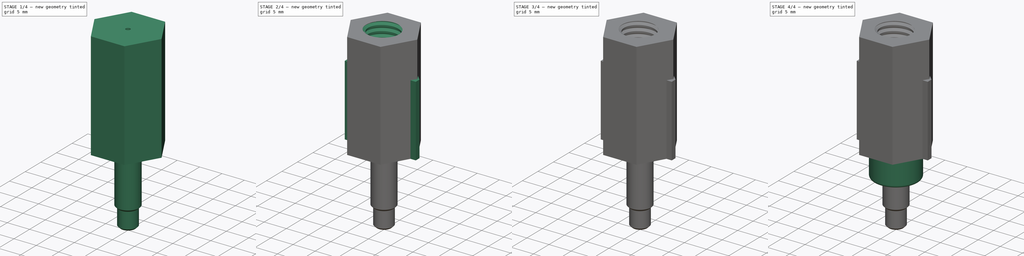
[diagram: build sequence overview — one tinted view per stage of 4, left to right]
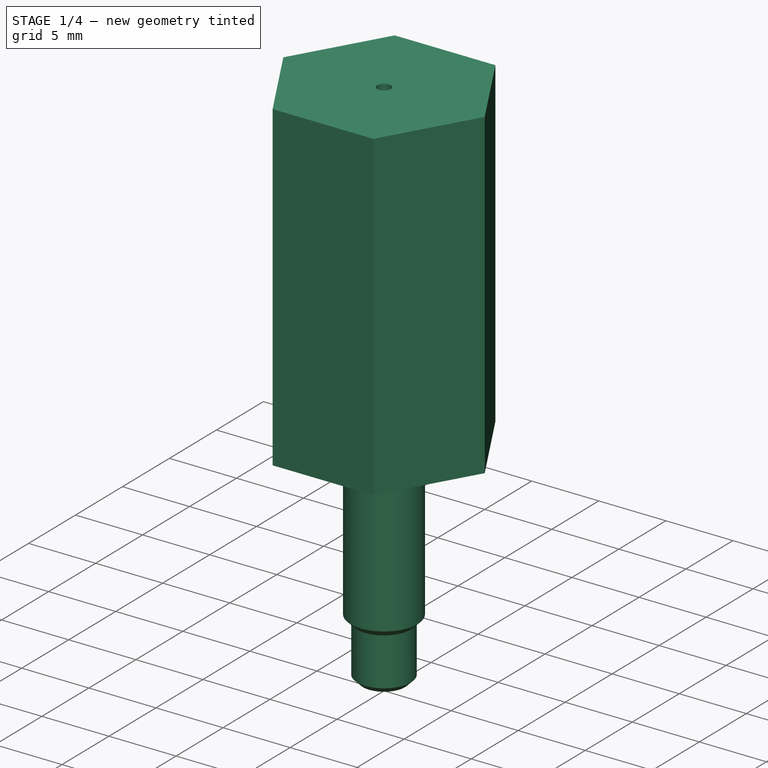
[diagram: stage 1 of 4 — iso view after this stage's code; geometry added in this stage tinted green]
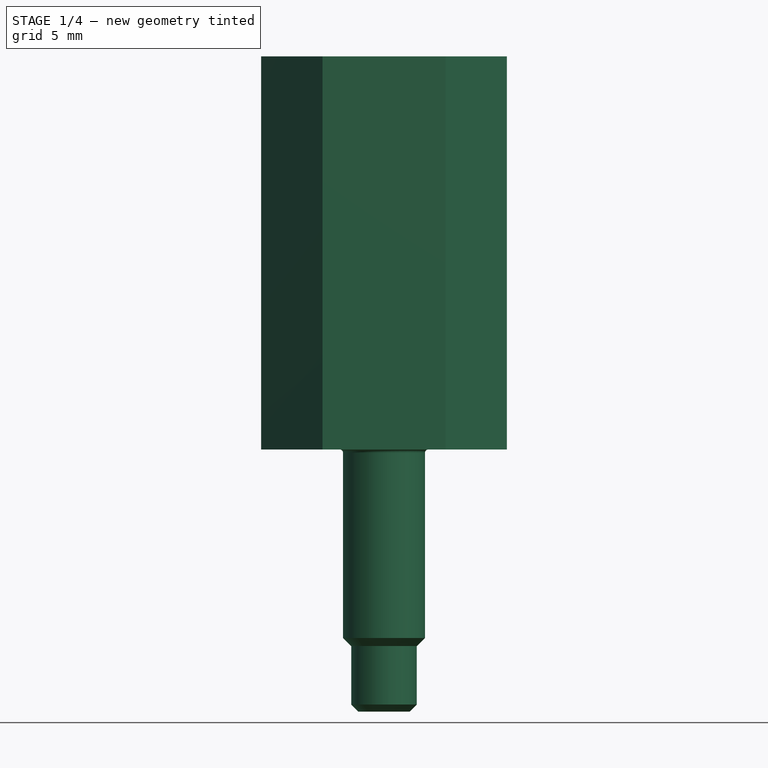
[diagram: stage 1 of 4 — front view after this stage's code; geometry added in this stage tinted green]
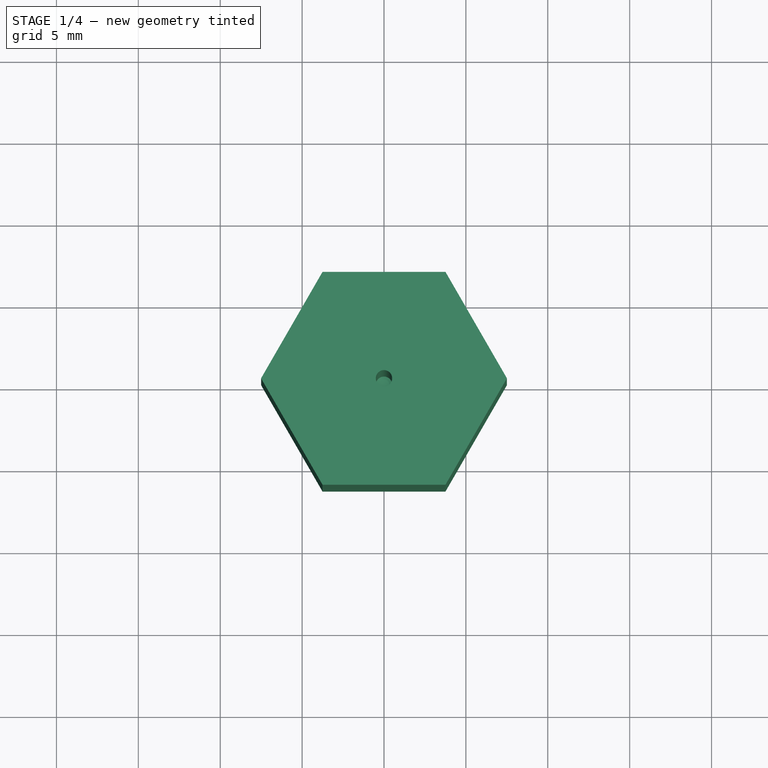
[diagram: stage 1 of 4 — top view after this stage's code; geometry added in this stage tinted green]
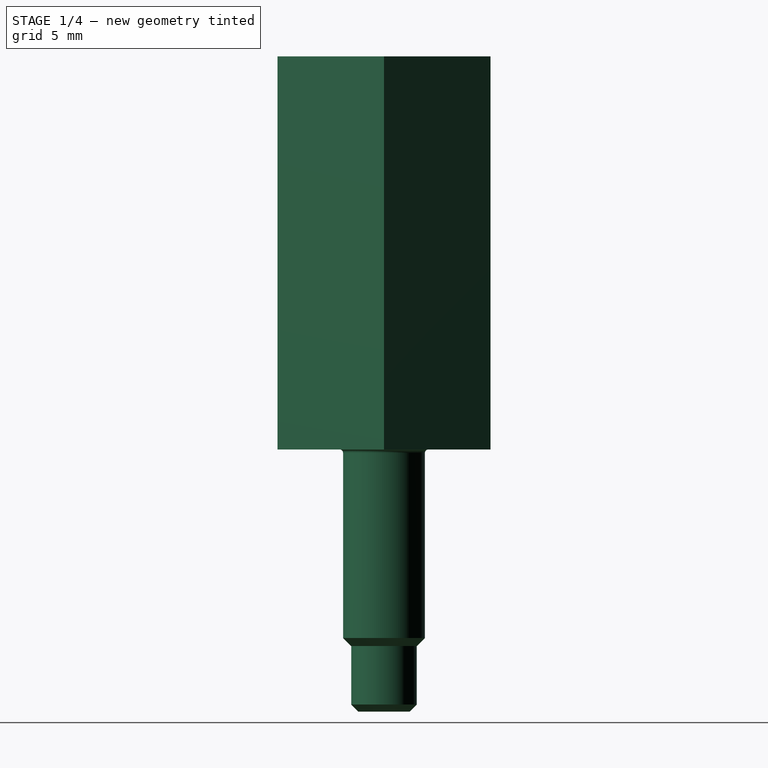
[diagram: stage 1 of 4 — right view after this stage's code; geometry added in this stage tinted green]
FCSTD DOCUMENT  (FreeCAD 0.20R30972 (Git))
Label: Крепеж
License: All rights reserved
LicenseURL: http://en.wikipedia.org/wiki/All_rights_reserved
objects: Part::FeaturePython×14, App::FeaturePython×9, Sketcher::SketchObject×7, PartDesign::Pad×4, PartDesign::Hole×4, PartDesign::Body×4, App::Link×1
note: 46 computed .brp shape members not serialized (recipe doc carries the construction recipe); baked Part::Feature solids carry a one-line shape summary decoded from their .brp
EXTERNAL_REF file=ТаблицаПараметров.FCStd obj=Spreadsheet002

FEATURE [PartDesign::Body] Body001  label="M5T_nut"
  AutoGroupSolids = false
  ClaimAllChildren = false
  ExportMode = 0
  Group = -> [Sketch002,Pad001,Sketch003,Hole001]
  Origin = -> Origin001
  Tip = -> Hole001
  TreeRank = 780
  _ExportChildren = -> [Pad001,Hole001]
  _GroupVersion = 1
FEATURE [Sketcher::SketchObject] Sketch006
  FullyConstrained = true
  MapMode = 2
  Support = -> [XY_Plane003]
  TreeRank = 11
  expr: Constraints[20] = <<ТаблицаПараметров>>#<<Ролик>>.din6334_D1
  sketch-geometry (8):
    g0: LineSegment StartX=3.75278 StartY=6.5 StartZ=0 EndX=-3.75278 EndY=6.5 EndZ=0
    g1: LineSegment StartX=-3.75278 StartY=6.5 StartZ=0 EndX=-7.50555 EndY=2.04e-14 EndZ=0
    g2: LineSegment StartX=-7.50555 StartY=2.04e-14 StartZ=0 EndX=-3.75278 EndY=-6.5 EndZ=0
    g3: LineSegment StartX=-3.75278 StartY=-6.5 StartZ=0 EndX=3.75278 EndY=-6.5 EndZ=0
    g4: LineSegment StartX=3.75278 StartY=-6.5 StartZ=0 EndX=7.50555 EndY=1.78e-14 EndZ=0
    g5: LineSegment StartX=7.50555 StartY=1.8e-14 StartZ=0 EndX=3.75278 EndY=6.5 EndZ=0
    g6: Circle [constr] CenterX=0 CenterY=0 CenterZ=0 NormalX=0 NormalY=0 NormalZ=1 AngleXU=0 Radius=7.50555
    g7: Circle CenterX=0 CenterY=0 CenterZ=0 NormalX=0 NormalY=0 NormalZ=1 AngleXU=0 Radius=0.5
  constraints (18):
    c: Coincident(g0,g1)
    c: Coincident(g1,g2)
    c: Coincident(g2,g3)
    c: Coincident(g3,g4)
    c: Coincident(g4,g5)
    c: Coincident(g5,g0)
    c: Equal(g0, g1-g5) x5
    c: PointOnObject(g0,g6)
    c: PointOnObject(g1,g6)
    c: PointOnObject(g2,g6)
    c: PointOnObject(g3,g6)
    c: PointOnObject(g4,g6)
    c: PointOnObject(g5,g6)
    c: Horizontal(g0)
    c: Coincident(g6,g7)
    c: Coincident(g6,g-1)
    c: DistanceY(g2,g0) = 13
    c: Diameter(g7) = 1
FEATURE [PartDesign::Pad] Pad003
  AddSubType = 0
  AlongSketchNormal = false
  CheckUpToFaceLimits = true
  ClaimChildren = false
  Direction = (0,0,1)
  Fit = 0
  FitJoin = 0
  InnerFit = 0
  InnerFitJoin = 0
  InnerTaperAngle = 0
  InnerTaperAngleRev = 0
  Length = 24
  Length2 = 100
  Linearize = true
  NewSolid = false
  Profile = -> Sketch006
  Suppress = false
  TreeRank = 12
  Type = 0
  _ProfileBasedVersion = 1
  expr: Length = <<ТаблицаПараметров>>#<<Ролик>>.din6334_Len
FEATURE [PartDesign::Body] Body003  label="DIN6334"
  AutoGroupSolids = false
  ClaimAllChildren = false
  ExportMode = 0
  Group = -> [Sketch006,Pad003,Hole003]
  Origin = -> Origin003
  Tip = -> Hole003
  TreeRank = 781
  _ExportChildren = -> [Pad003,Hole003]
  _GroupVersion = 1
FEATURE [Part::FeaturePython] Screw  label="M4x16-Screw"  # Fasteners workbench fastener (typed FeaturePython)
  TreeRank = 782
  diameter = 5
  invert = false
  length = 5
  lengthCustom = 16
  matchOuter = false
  offset = 0
  thread = false
  type = 34
FEATURE [Part::FeaturePython] Screw003  label="M5x12-Screw"  # Fasteners workbench fastener (typed FeaturePython)
  TreeRank = 783
  diameter = 6
  invert = false
  length = 2
  lengthCustom = 12
  matchOuter = false
  offset = 0
  thread = false
  type = 34
FEATURE [App::FeaturePython] Constraints  # WARN: FeaturePython — macro-defined, semantics opaque (R4)
  TreeRank = 785
  _LinkVersion = 1
  _Version = 1
FEATURE [Part::FeaturePython] Parts  # WARN: FeaturePython — macro-defined, semantics opaque (R4)
  Group = -> [Screw003]
  GroupMode = 0
  TreeRank = 787
  _LinkVersion = 1
FEATURE [App::FeaturePython] Constraints006  # WARN: FeaturePython — macro-defined, semantics opaque (R4)
  TreeRank = 791
  _LinkVersion = 1
  _Version = 1
FEATURE [Part::FeaturePython] Parts006  # WARN: FeaturePython — macro-defined, semantics opaque (R4)
  Group = -> [Screw]
  GroupMode = 0
  TreeRank = 793
  _LinkVersion = 1
FEATURE [Part::FeaturePython] Assembly005  label="КрепежМ6Тгайка"  # WARN: FeaturePython — macro-defined, semantics opaque (R4)
  AutoRelax = true
  BuildShape = 0
  Freeze = false
  Group = -> [Constraints005,Elements005,Parts005]
  TreeRank = 778
  Verbose = false
  _LinkVersion = 1
  _SolverType = 1
  _Version = 1
FEATURE [App::FeaturePython] Constraint065  label="Attachment029"  # WARN: FeaturePython — macro-defined, semantics opaque (R4)
  Cascade = false
  Disabled = false
  Group = -> [ElementLink138,ElementLink139]
  Multiply = false
  TreeRank = 773
  _ConstraintType = 45
  _LinkVersion = 1
  _Parent = -> Constraints005
FEATURE [App::FeaturePython] Constraints005  # WARN: FeaturePython — macro-defined, semantics opaque (R4)
  Group = -> [Constraint065]
  TreeRank = 762
  _LinkVersion = 1
  _Version = 1
FEATURE [Part::FeaturePython] Element140  label="Винт"  # link proxy (typed FeaturePython)
  Detach = false
  LinkTransform = true
  LinkedObject = -> Screw002 [Face5]
  TreeRank = 765
  _LinkVersion = 1
  _Parent = -> Elements005
FEATURE [Part::FeaturePython] Element141  label="резьбагайки"  # link proxy (typed FeaturePython)
  Detach = false
  LinkTransform = true
  LinkedObject = -> Link028 [Hole002.Face6]
  TreeRank = 766
  _LinkVersion = 1
  _Parent = -> Elements005
FEATURE [Part::FeaturePython] Element142  label="резьбавинта"  # link proxy (typed FeaturePython)
  Detach = false
  LinkTransform = true
  LinkedObject = -> Screw002 [Face7]
  TreeRank = 767
  _LinkVersion = 1
  _Parent = -> Elements005
FEATURE [App::FeaturePython] ElementLink138  label="резьбавинта"  # link proxy (typed FeaturePython)
  LinkTransform = true
  LinkedObject = -> Element142
  TreeRank = 774
  _LinkVersion = 1
  _Parent = -> Constraint065
FEATURE [App::FeaturePython] ElementLink139  label="резьбагайки"  # link proxy (typed FeaturePython)
  LinkTransform = true
  LinkedObject = -> Element141
  Offset = pos=(0,0,13) rot=(0,0,1;1.5708rad)
  Placement = pos=(-4.4e-15,1.13e-14,-13) rot=(0,0,-1;1.5708rad)
  TreeRank = 775
  _LinkVersion = 1
  _Parent = -> Constraint065
FEATURE [App::FeaturePython] Elements005  # WARN: FeaturePython — macro-defined, semantics opaque (R4)
  Group = -> [Element140,Element141,Element142]
  TreeRank = 763
  _LinkVersion = 1
FEATURE [Part::FeaturePython] Assembly  label="М5х12"  # WARN: FeaturePython — macro-defined, semantics opaque (R4)
  AutoRelax = true
  BuildShape = 0
  Freeze = false
  Group = -> [Constraints,Elements,Parts]
  TreeRank = 784
  Verbose = false
  _LinkVersion = 1
  _SolverType = 1
  _Version = 1
FEATURE [App::FeaturePython] Elements  # WARN: FeaturePython — macro-defined, semantics opaque (R4)
  Group = -> [Element]
  TreeRank = 786
  _LinkVersion = 1
FEATURE [Part::FeaturePython] Element  label="М5_12_посадка"  # link proxy (typed FeaturePython)
  Detach = false
  LinkTransform = true
  LinkedObject = -> Screw003 [Face5]
  TreeRank = 788
  _LinkVersion = 1
  _Parent = -> Elements
FEATURE [Part::FeaturePython] Assembly006  label="М4х16"  # WARN: FeaturePython — macro-defined, semantics opaque (R4)
  AutoRelax = true
  BuildShape = 0
  Freeze = false
  Group = -> [Constraints006,Elements006,Parts006]
  TreeRank = 790
  Verbose = false
  _LinkVersion = 1
  _SolverType = 1
  _Version = 1
FEATURE [App::FeaturePython] Elements006  # WARN: FeaturePython — macro-defined, semantics opaque (R4)
  Group = -> [Element143]
  TreeRank = 792
  _LinkVersion = 1
FEATURE [Part::FeaturePython] Element143  label="М4_16_посадка"  # link proxy (typed FeaturePython)
  Detach = false
  LinkTransform = true
  LinkedObject = -> Screw [Face5]
  TreeRank = 794
  _LinkVersion = 1
  _Parent = -> Elements006
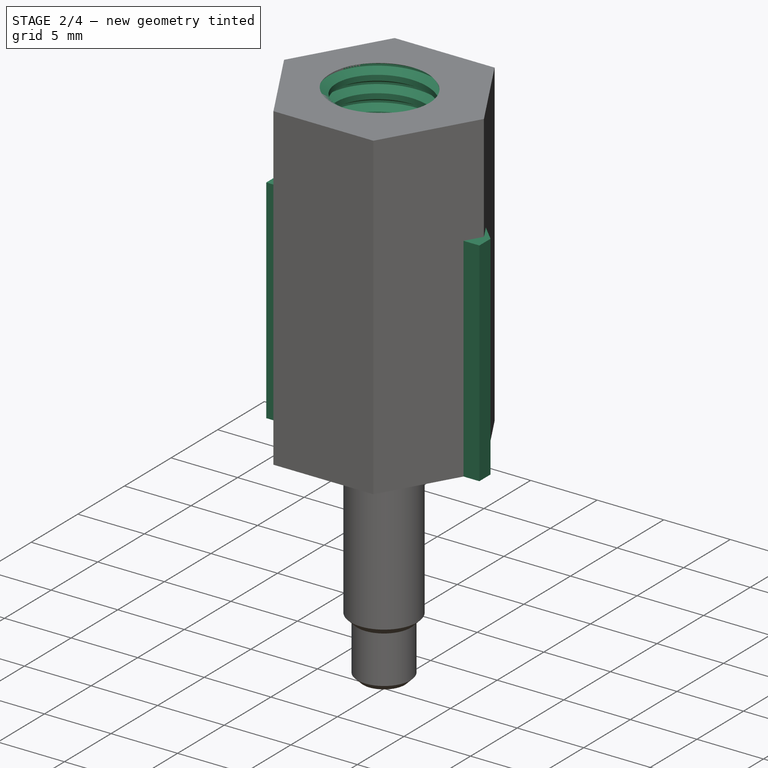
[diagram: stage 2 of 4 — iso view after this stage's code; geometry added in this stage tinted green]
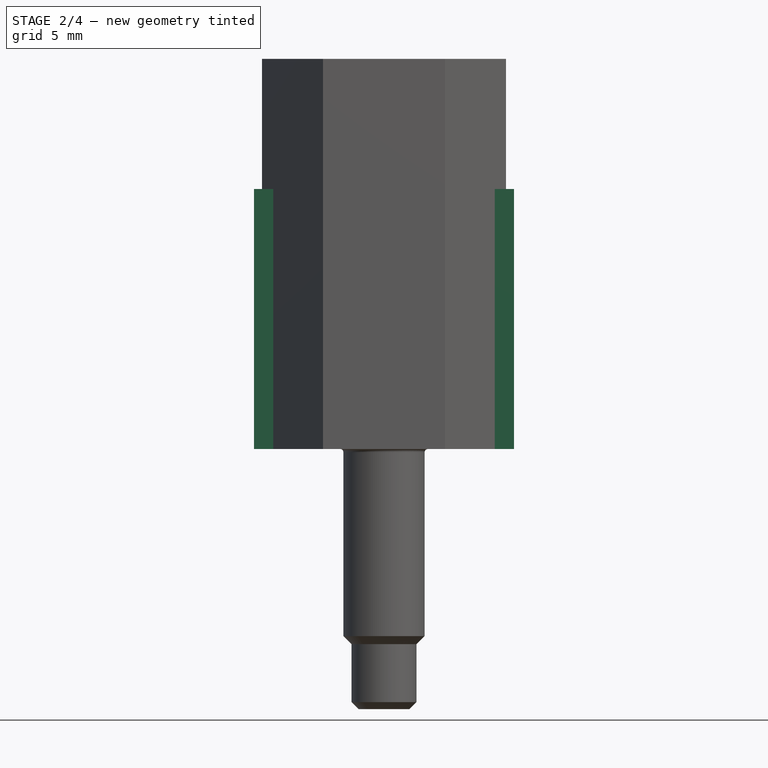
[diagram: stage 2 of 4 — front view after this stage's code; geometry added in this stage tinted green]
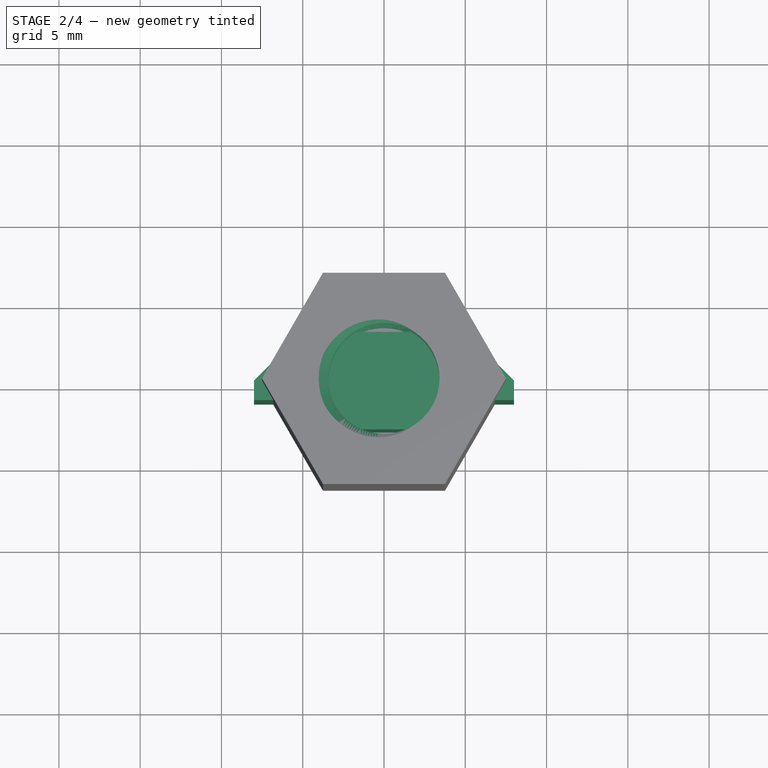
[diagram: stage 2 of 4 — top view after this stage's code; geometry added in this stage tinted green]
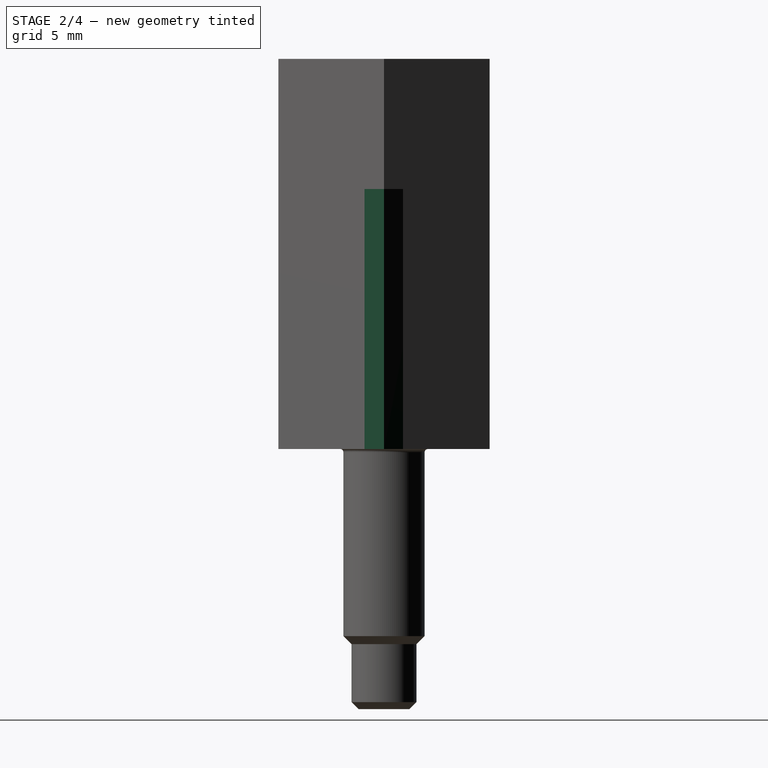
[diagram: stage 2 of 4 — right view after this stage's code; geometry added in this stage tinted green]
FEATURE [Part::FeaturePython] Parts005  # WARN: FeaturePython — macro-defined, semantics opaque (R4)
  Group = -> [Link028,Screw002]
  GroupMode = 0
  TreeRank = 764
  _LinkVersion = 1
FEATURE [Sketcher::SketchObject] Sketch
  FullyConstrained = true
  MapMode = 2
  TreeRank = 11
  sketch-geometry (10):
    g0: LineSegment StartX=-5 StartY=3 StartZ=0 EndX=5 EndY=3 EndZ=0
    g1: LineSegment StartX=5 StartY=3 StartZ=0 EndX=8 EndY=0 EndZ=0
    g2: LineSegment StartX=8 StartY=0 StartZ=0 EndX=8 EndY=-1.2 EndZ=0
    g3: LineSegment StartX=8 StartY=-1.2 StartZ=0 EndX=3.9 EndY=-1.2 EndZ=0
    g4: LineSegment StartX=3.9 StartY=-1.2 StartZ=0 EndX=3.9 EndY=-3 EndZ=0
    g5: LineSegment StartX=3.9 StartY=-3 StartZ=0 EndX=-3.9 EndY=-3 EndZ=0
    g6: LineSegment StartX=-3.9 StartY=-3 StartZ=0 EndX=-3.9 EndY=-1.2 EndZ=0
    g7: LineSegment StartX=-3.9 StartY=-1.2 StartZ=0 EndX=-8 EndY=-1.2 EndZ=0
    g8: LineSegment StartX=-8 StartY=-1.2 StartZ=0 EndX=-8 EndY=0 EndZ=0
    g9: LineSegment StartX=-8 StartY=0 StartZ=0 EndX=-5 EndY=3 EndZ=0
  constraints (28):
    c: PointOnObject(g1,g-1)
    c: Vertical(g2)
    c: Coincident(g3,g2)
    c: Horizontal(g3)
    c: Coincident(g4,g3)
    c: Coincident(g6,g5)
    c: Coincident(g7,g6)
    c: Horizontal(g7)
    c: Coincident(g8,g7)
    c: PointOnObject(g8,g-1)
    c: Vertical(g8)
    c: Coincident(g9,g0)
    c: Coincident(g0,g1)
    c: Coincident(g1,g2)
    c: Coincident(g5,g4)
    c: Vertical(g4)
    c: Vertical(g6)
    c: DistanceX(g0,g0) = 10
    c: Angle(g-1,g9) = 0.785398
    c: Coincident(g9,g8)
    c: Angle(g1,g-1) = 0.785398
    c: Symmetric(g0,g0,g-2)
    c: DistanceX(g5,g5) = 7.8
    c: Symmetric(g5,g4,g-2)
    c: DistanceY(g4,g4) = 1.8
    c: DistanceX(g7,g2) = 16
    c: DistanceY(g6,g6) = 1.8
    c: DistanceY(g5,g0) = 6
FEATURE [PartDesign::Pad] Pad
  AddSubType = 0
  AlongSketchNormal = false
  CheckUpToFaceLimits = true
  ClaimChildren = false
  Direction = (0,0,1)
  Fit = 0
  FitJoin = 0
  InnerFit = 0
  InnerFitJoin = 0
  InnerTaperAngle = 0
  InnerTaperAngleRev = 0
  Length = 16
  Length2 = 100
  Linearize = true
  NewSolid = false
  Profile = -> Sketch
  Suppress = false
  TreeRank = 12
  Type = 0
  _ProfileBasedVersion = 1
FEATURE [PartDesign::Body] Body  label="M4T_nut"
  AutoGroupSolids = false
  ClaimAllChildren = false
  ExportMode = 0
  Group = -> [Sketch,Pad,Sketch001,Hole]
  Origin = -> Origin
  Tip = -> Hole
  TreeRank = 779
  _ExportChildren = -> [Pad,Hole]
  _GroupVersion = 1
FEATURE [Sketcher::SketchObject] Sketch002
  FullyConstrained = true
  MapMode = 2
  TreeRank = 11
  sketch-geometry (10):
    g0: LineSegment StartX=-5 StartY=3 StartZ=0 EndX=5 EndY=3 EndZ=0
    g1: LineSegment StartX=5 StartY=3 StartZ=0 EndX=8 EndY=0 EndZ=0
    g2: LineSegment StartX=8 StartY=0 StartZ=0 EndX=8 EndY=-1.2 EndZ=0
    g3: LineSegment StartX=8 StartY=-1.2 StartZ=0 EndX=3.9 EndY=-1.2 EndZ=0
    g4: LineSegment StartX=3.9 StartY=-1.2 StartZ=0 EndX=3.9 EndY=-3 EndZ=0
    g5: LineSegment StartX=3.9 StartY=-3 StartZ=0 EndX=-3.9 EndY=-3 EndZ=0
    g6: LineSegment StartX=-3.9 StartY=-3 StartZ=0 EndX=-3.9 EndY=-1.2 EndZ=0
    g7: LineSegment StartX=-3.9 StartY=-1.2 StartZ=0 EndX=-8 EndY=-1.2 EndZ=0
    g8: LineSegment StartX=-8 StartY=-1.2 StartZ=0 EndX=-8 EndY=0 EndZ=0
    g9: LineSegment StartX=-8 StartY=0 StartZ=0 EndX=-5 EndY=3 EndZ=0
  constraints (28):
    c: PointOnObject(g1,g-1)
    c: Vertical(g2)
    c: Coincident(g3,g2)
    c: Horizontal(g3)
    c: Coincident(g4,g3)
    c: Coincident(g6,g5)
    c: Coincident(g7,g6)
    c: Horizontal(g7)
    c: Coincident(g8,g7)
    c: PointOnObject(g8,g-1)
    c: Vertical(g8)
    c: Coincident(g9,g0)
    c: Coincident(g0,g1)
    c: Coincident(g1,g2)
    c: Coincident(g5,g4)
    c: Vertical(g4)
    c: Vertical(g6)
    c: DistanceX(g0,g0) = 10
    c: Angle(g-1,g9) = 0.785398
    c: Coincident(g9,g8)
    c: Angle(g1,g-1) = 0.785398
    c: Symmetric(g0,g0,g-2)
    c: DistanceX(g5,g5) = 7.8
    c: Symmetric(g5,g4,g-2)
    c: DistanceY(g4,g4) = 1.8
    c: DistanceX(g7,g2) = 16
    c: DistanceY(g6,g6) = 1.8
    c: DistanceY(g5,g0) = 6
FEATURE [PartDesign::Pad] Pad001
  AddSubType = 0
  AlongSketchNormal = false
  CheckUpToFaceLimits = true
  ClaimChildren = false
  Direction = (0,0,1)
  Fit = 0
  FitJoin = 0
  InnerFit = 0
  InnerFitJoin = 0
  InnerTaperAngle = 0
  InnerTaperAngleRev = 0
  Length = 16
  Length2 = 100
  Linearize = true
  NewSolid = false
  Profile = -> Sketch002
  Suppress = false
  TreeRank = 12
  Type = 0
  _ProfileBasedVersion = 1
FEATURE [PartDesign::Hole] Hole003
  AddSubType = 1
  BaseFeature = -> Pad003
  ClaimChildren = false
  CustomThreadClearance = 0
  Depth = 25
  DepthType = 0
  Diameter = 6.828
  DrillForDepth = false
  DrillPoint = 1
  DrillPointAngle = 118
  Fit = 0
  FitJoin = 0
  HoleCutCountersinkAngle = 90
  HoleCutCustomValues = false
  HoleCutDepth = 0
  HoleCutDiameter = 6.93
  HoleCutType = 0
  InnerFit = 0
  InnerFitJoin = 0
  Linearize = true
  ModelThread = true
  NewSolid = false
  Profile = -> Pad003 [Edge21]
  Suppress = false
  Tapered = false
  TaperedAngle = 90
  ThreadClass = 0
  ThreadDepth = 25
  ThreadDepthType = 0
  ThreadDirection = 0
  ThreadFit = 0
  ThreadSize = 16
  ThreadType = 1
  Threaded = true
  TreeRank = 13
  UseCustomThreadClearance = false
  _ProfileBasedVersion = 1
  expr: ThreadSize = <<ТаблицаПараметров>>#<<Ролик>>.din6334_Index
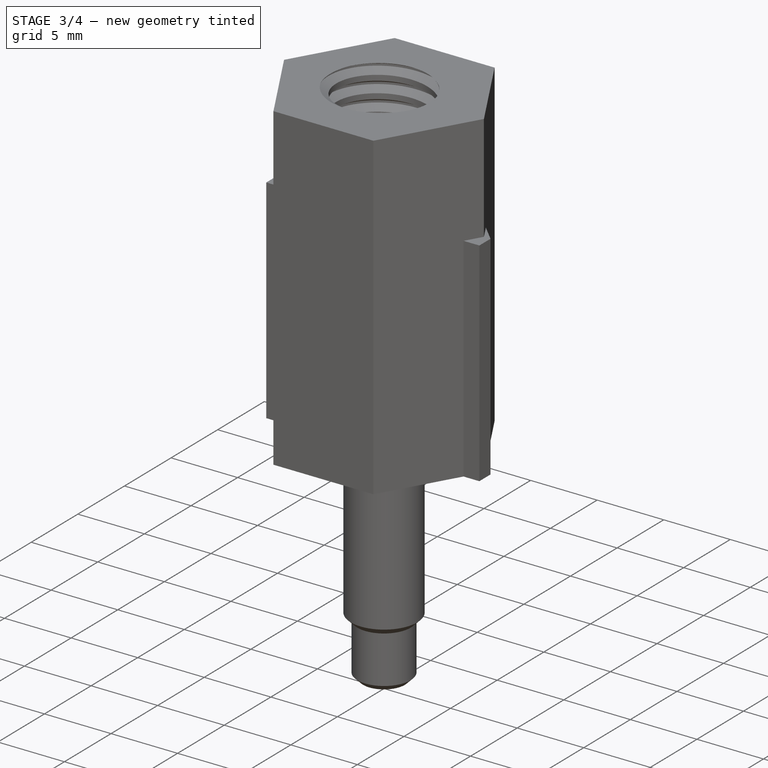
[diagram: stage 3 of 4 — iso view after this stage's code; geometry added in this stage tinted green]
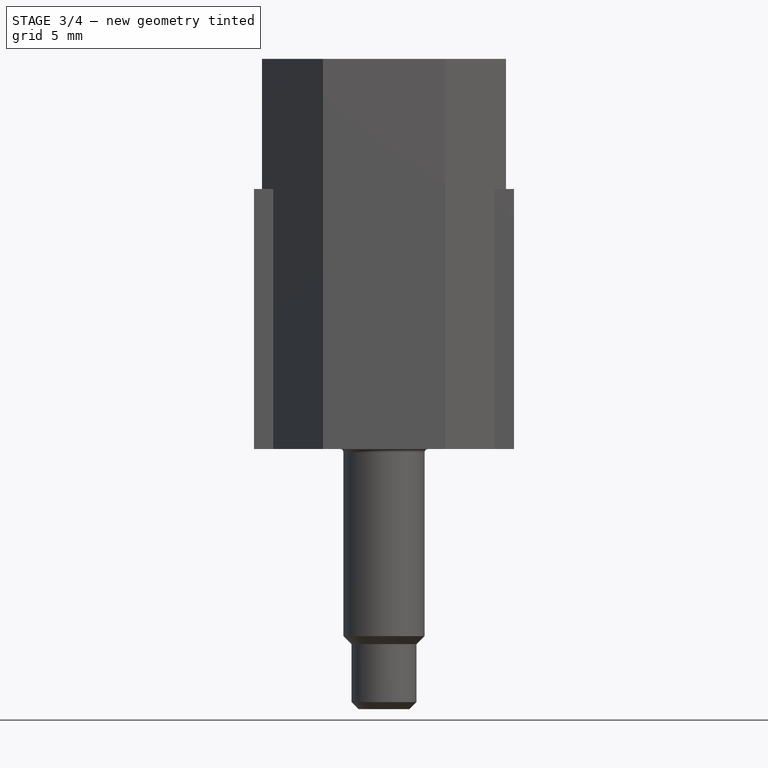
[diagram: stage 3 of 4 — front view after this stage's code; geometry added in this stage tinted green]
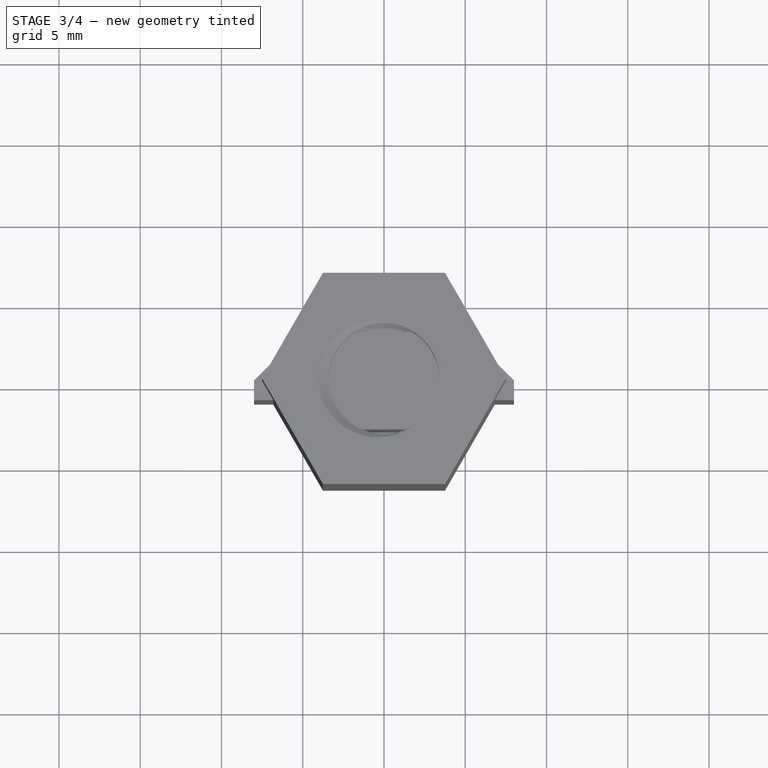
[diagram: stage 3 of 4 — top view after this stage's code; geometry added in this stage tinted green]
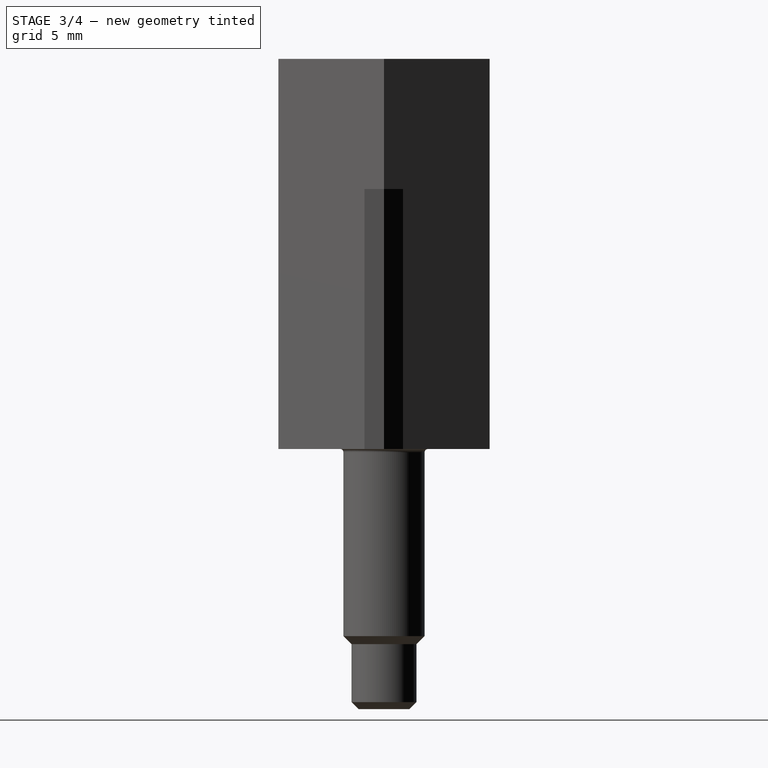
[diagram: stage 3 of 4 — right view after this stage's code; geometry added in this stage tinted green]
FEATURE [Sketcher::SketchObject] Sketch001
  FullyConstrained = true
  MapMode = 5
  Placement = pos=(0,-3,0) rot=(1,0,0;1.5708rad)
  Support = -> [Pad]
  TreeRank = 13
  sketch-geometry (1):
    g0: Circle CenterX=0 CenterY=8 CenterZ=0 NormalX=0 NormalY=0 NormalZ=1 AngleXU=0 Radius=1.6
  constraints (3):
    c: PointOnObject(g0,g-2)
    c: DistanceY(g-1,g0) = 8
    c: Diameter(g0) = 3.2
FEATURE [PartDesign::Hole] Hole
  AddSubType = 1
  BaseFeature = -> Pad
  ClaimChildren = false
  CustomThreadClearance = 0
  Depth = 6
  DepthType = 0
  Diameter = 3.322
  DrillForDepth = false
  DrillPoint = 1
  DrillPointAngle = 118
  Fit = 0
  FitJoin = 0
  HoleCutCountersinkAngle = 90
  HoleCutCustomValues = false
  HoleCutDepth = 0
  HoleCutDiameter = 6.1
  HoleCutType = 0
  InnerFit = 0
  InnerFitJoin = 0
  Linearize = true
  ModelThread = true
  NewSolid = false
  Profile = -> Sketch001
  Suppress = false
  Tapered = false
  TaperedAngle = 90
  ThreadClass = 0
  ThreadDepth = 6
  ThreadDepthType = 1
  ThreadDirection = 0
  ThreadFit = 0
  ThreadSize = 11
  ThreadType = 1
  Threaded = true
  TreeRank = 14
  UseCustomThreadClearance = false
  _ProfileBasedVersion = 1
FEATURE [Sketcher::SketchObject] Sketch003
  FullyConstrained = true
  MapMode = 5
  Placement = pos=(0,-3,0) rot=(1,0,0;1.5708rad)
  Support = -> [Pad001]
  TreeRank = 13
  sketch-geometry (1):
    g0: Circle CenterX=0 CenterY=8 CenterZ=0 NormalX=0 NormalY=0 NormalZ=1 AngleXU=0 Radius=1.6
  constraints (3):
    c: PointOnObject(g0,g-2)
    c: DistanceY(g-1,g0) = 8
    c: Diameter(g0) = 3.2
FEATURE [PartDesign::Hole] Hole001
  AddSubType = 1
  BaseFeature = -> Pad001
  ClaimChildren = false
  CustomThreadClearance = 0
  Depth = 6
  DepthType = 0
  Diameter = 4.224
  DrillForDepth = false
  DrillPoint = 1
  DrillPointAngle = 118
  Fit = 0
  FitJoin = 0
  HoleCutCountersinkAngle = 90
  HoleCutCustomValues = false
  HoleCutDepth = 0
  HoleCutDiameter = 6.1
  HoleCutType = 0
  InnerFit = 0
  InnerFitJoin = 0
  Linearize = true
  ModelThread = true
  NewSolid = false
  Profile = -> Sketch003
  Suppress = false
  Tapered = false
  TaperedAngle = 90
  ThreadClass = 0
  ThreadDepth = 6
  ThreadDepthType = 1
  ThreadDirection = 0
  ThreadFit = 0
  ThreadSize = 13
  ThreadType = 1
  Threaded = true
  TreeRank = 14
  UseCustomThreadClearance = false
  _ProfileBasedVersion = 1
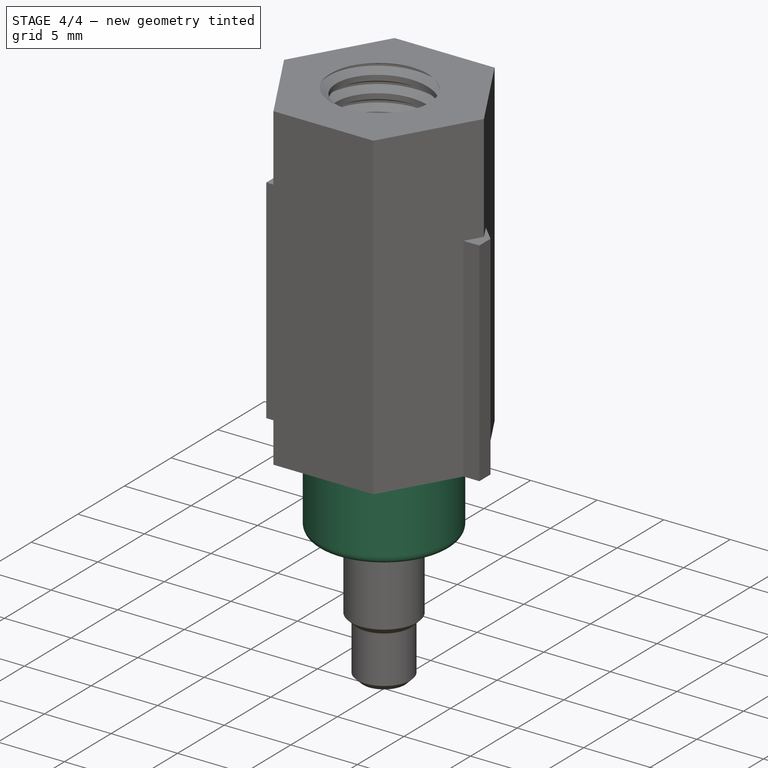
[diagram: stage 4 of 4 — iso view after this stage's code; geometry added in this stage tinted green]
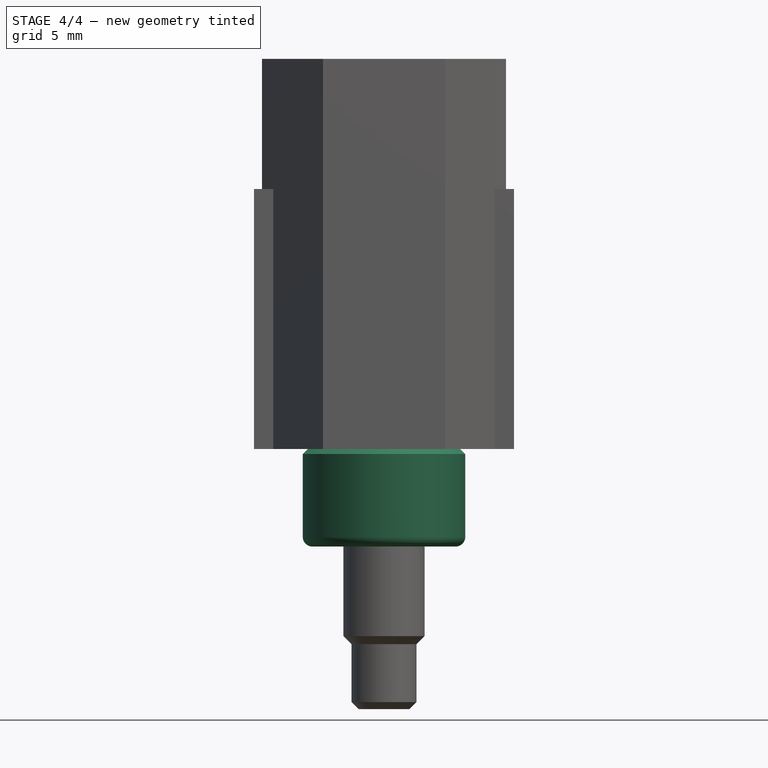
[diagram: stage 4 of 4 — front view after this stage's code; geometry added in this stage tinted green]
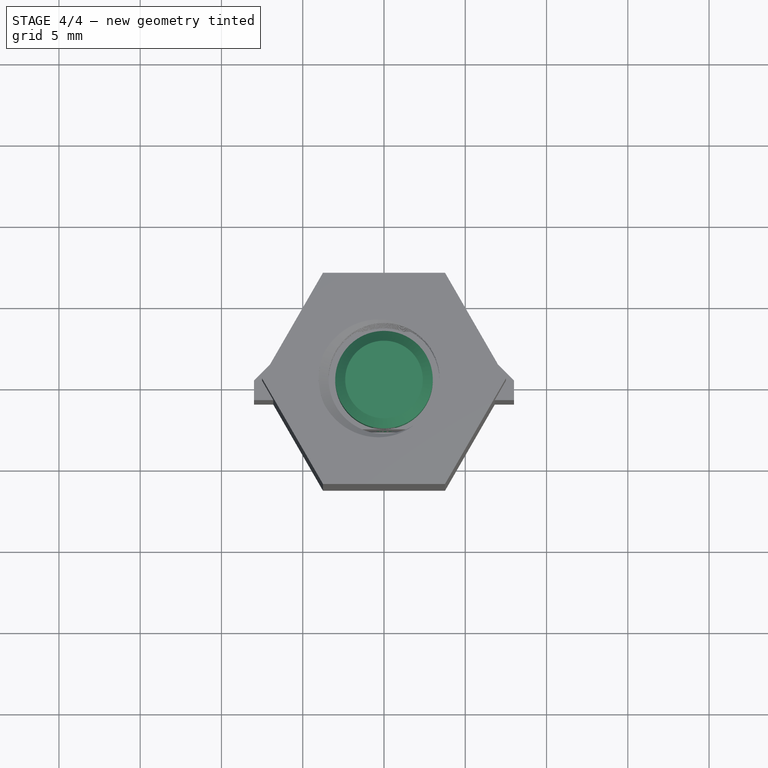
[diagram: stage 4 of 4 — top view after this stage's code; geometry added in this stage tinted green]
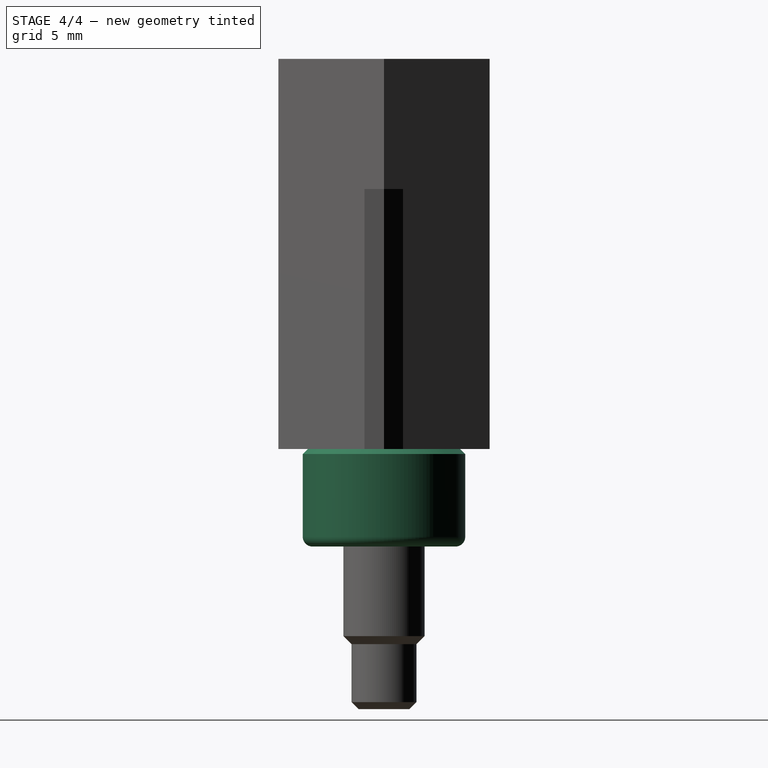
[diagram: stage 4 of 4 — right view after this stage's code; geometry added in this stage tinted green]
FEATURE [Sketcher::SketchObject] Sketch004
  FullyConstrained = true
  MapMode = 2
  TreeRank = 11
  sketch-geometry (10):
    g0: LineSegment StartX=-5 StartY=3 StartZ=0 EndX=5 EndY=3 EndZ=0
    g1: LineSegment StartX=5 StartY=3 StartZ=0 EndX=8 EndY=0 EndZ=0
    g2: LineSegment StartX=8 StartY=0 StartZ=0 EndX=8 EndY=-1.2 EndZ=0
    g3: LineSegment StartX=8 StartY=-1.2 StartZ=0 EndX=3.9 EndY=-1.2 EndZ=0
    g4: LineSegment StartX=3.9 StartY=-1.2 StartZ=0 EndX=3.9 EndY=-3 EndZ=0
    g5: LineSegment StartX=3.9 StartY=-3 StartZ=0 EndX=-3.9 EndY=-3 EndZ=0
    g6: LineSegment StartX=-3.9 StartY=-3 StartZ=0 EndX=-3.9 EndY=-1.2 EndZ=0
    g7: LineSegment StartX=-3.9 StartY=-1.2 StartZ=0 EndX=-8 EndY=-1.2 EndZ=0
    g8: LineSegment StartX=-8 StartY=-1.2 StartZ=0 EndX=-8 EndY=0 EndZ=0
    g9: LineSegment StartX=-8 StartY=0 StartZ=0 EndX=-5 EndY=3 EndZ=0
  constraints (28):
    c: PointOnObject(g1,g-1)
    c: Vertical(g2)
    c: Coincident(g3,g2)
    c: Horizontal(g3)
    c: Coincident(g4,g3)
    c: Coincident(g6,g5)
    c: Coincident(g7,g6)
    c: Horizontal(g7)
    c: Coincident(g8,g7)
    c: PointOnObject(g8,g-1)
    c: Vertical(g8)
    c: Coincident(g9,g0)
    c: Coincident(g0,g1)
    c: Coincident(g1,g2)
    c: Coincident(g5,g4)
    c: Vertical(g4)
    c: Vertical(g6)
    c: DistanceX(g0,g0) = 10
    c: Angle(g-1,g9) = 0.785398
    c: Coincident(g9,g8)
    c: Angle(g1,g-1) = 0.785398
    c: Symmetric(g0,g0,g-2)
    c: DistanceX(g5,g5) = 7.8
    c: Symmetric(g5,g4,g-2)
    c: DistanceY(g4,g4) = 1.8
    c: DistanceX(g7,g2) = 16
    c: DistanceY(g6,g6) = 1.8
    c: DistanceY(g5,g0) = 6
FEATURE [PartDesign::Pad] Pad002
  AddSubType = 0
  AlongSketchNormal = false
  CheckUpToFaceLimits = true
  ClaimChildren = false
  Direction = (0,0,1)
  Fit = 0
  FitJoin = 0
  InnerFit = 0
  InnerFitJoin = 0
  InnerTaperAngle = 0
  InnerTaperAngleRev = 0
  Length = 16
  Length2 = 100
  Linearize = true
  NewSolid = false
  Profile = -> Sketch004
  Suppress = false
  TreeRank = 12
  Type = 0
  _ProfileBasedVersion = 1
FEATURE [Sketcher::SketchObject] Sketch005
  FullyConstrained = true
  MapMode = 5
  Placement = pos=(0,-3,0) rot=(1,0,0;1.5708rad)
  Support = -> [Pad002]
  TreeRank = 13
  sketch-geometry (1):
    g0: Circle CenterX=0 CenterY=8 CenterZ=0 NormalX=0 NormalY=0 NormalZ=1 AngleXU=0 Radius=1.6
  constraints (3):
    c: PointOnObject(g0,g-2)
    c: DistanceY(g-1,g0) = 8
    c: Diameter(g0) = 3.2
FEATURE [PartDesign::Hole] Hole002
  AddSubType = 1
  BaseFeature = -> Pad002
  ClaimChildren = false
  CustomThreadClearance = 0
  Depth = 6
  DepthType = 0
  Diameter = 6.6
  DrillForDepth = false
  DrillPoint = 1
  DrillPointAngle = 118
  Fit = 0
  FitJoin = 0
  HoleCutCountersinkAngle = 90
  HoleCutCustomValues = false
  HoleCutDepth = 0
  HoleCutDiameter = 6.1
  HoleCutType = 0
  InnerFit = 0
  InnerFitJoin = 0
  Linearize = true
  ModelThread = true
  NewSolid = false
  Profile = -> Sketch005
  Suppress = false
  Tapered = false
  TaperedAngle = 90
  ThreadClass = 0
  ThreadDepth = 6
  ThreadDepthType = 1
  ThreadDirection = 0
  ThreadFit = 0
  ThreadSize = 14
  ThreadType = 1
  Threaded = false
  TreeRank = 14
  UseCustomThreadClearance = false
  _ProfileBasedVersion = 1
FEATURE [PartDesign::Body] Body002  label="M6T_nut"
  AutoGroupSolids = false
  ClaimAllChildren = false
  ExportMode = 0
  Group = -> [Sketch004,Pad002,Sketch005,Hole002]
  Origin = -> Origin002
  Tip = -> Hole002
  TreeRank = 777
  _ExportChildren = -> [Pad002,Hole002]
  _GroupVersion = 1
FEATURE [App::Link] Link028  label="M6T_nut_1"
  AutoLinkLabel = true
  AutoPlacement = true
  LinkPlacement = pos=(8,-2.7e-15,16.25) rot=(0.57735,-0.57735,-0.57735;2.0944rad)
  LinkedObject = -> Body002
  Placement = pos=(8,-2.7e-15,16.25) rot=(0.57735,-0.57735,-0.57735;2.0944rad)
  SyncGroupVisibility = false
  TreeRank = 692
  _LinkVersion = 1
FEATURE [Part::FeaturePython] Screw002  label="M6x20-Screw"  # Fasteners workbench fastener (typed FeaturePython)
  Placement = pos=(0,0,0) rot=(1,0,0;3.14159rad)
  TreeRank = 200
  diameter = 7
  invert = false
  length = 5
  lengthCustom = 20
  matchOuter = false
  offset = 0
  thread = false
  type = 34
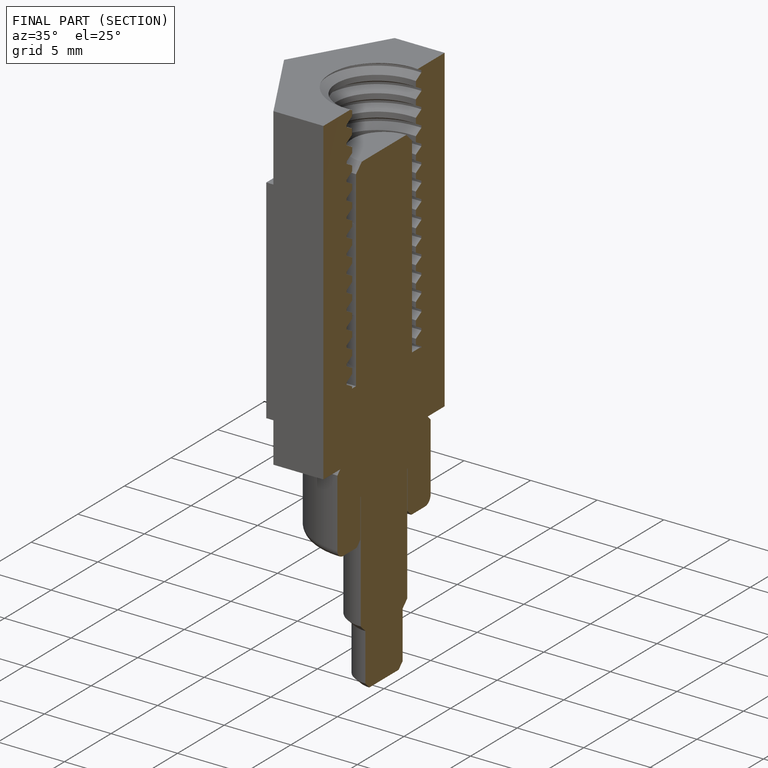
[diagram: finished part — half-section view (interior)]
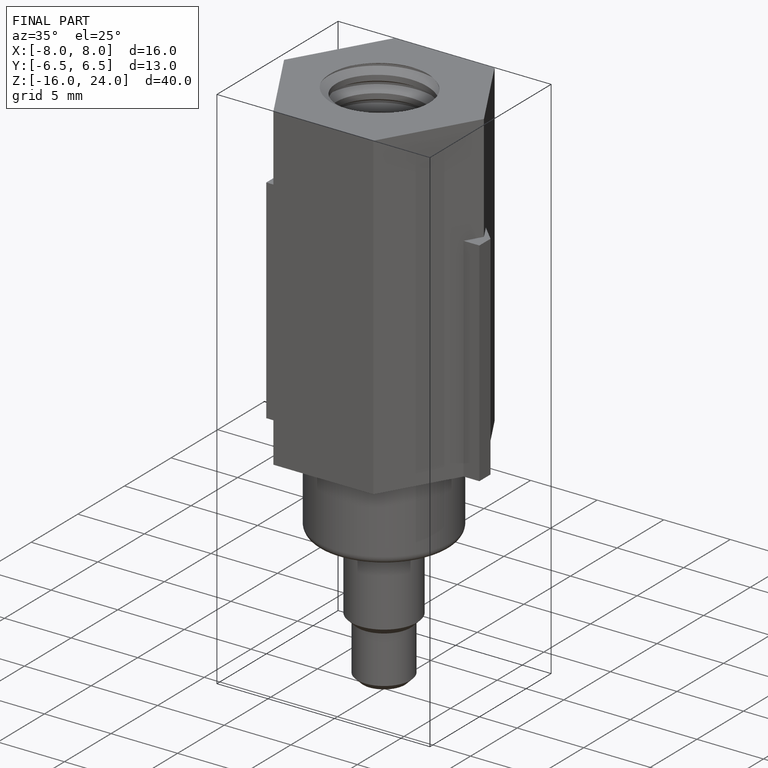
[diagram: finished part — iso view with bounding-box wireframe]
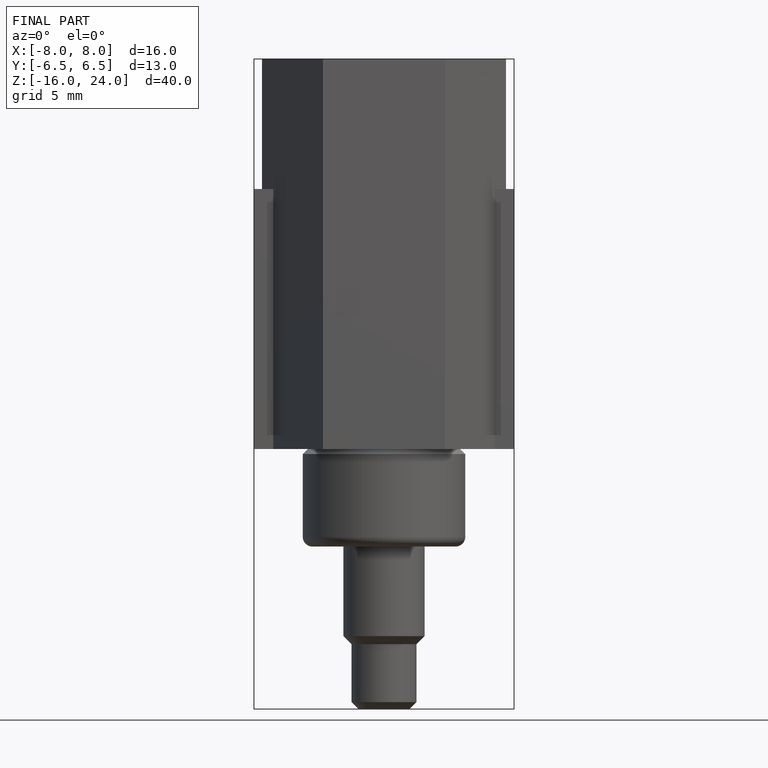
[diagram: finished part — front view with bounding-box wireframe]
